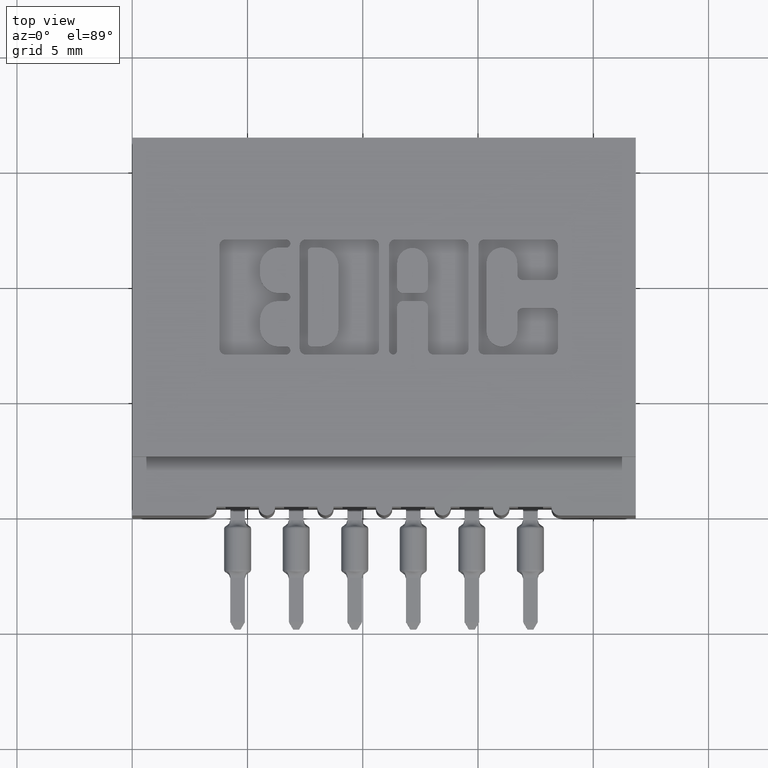
[diagram: clean part render]
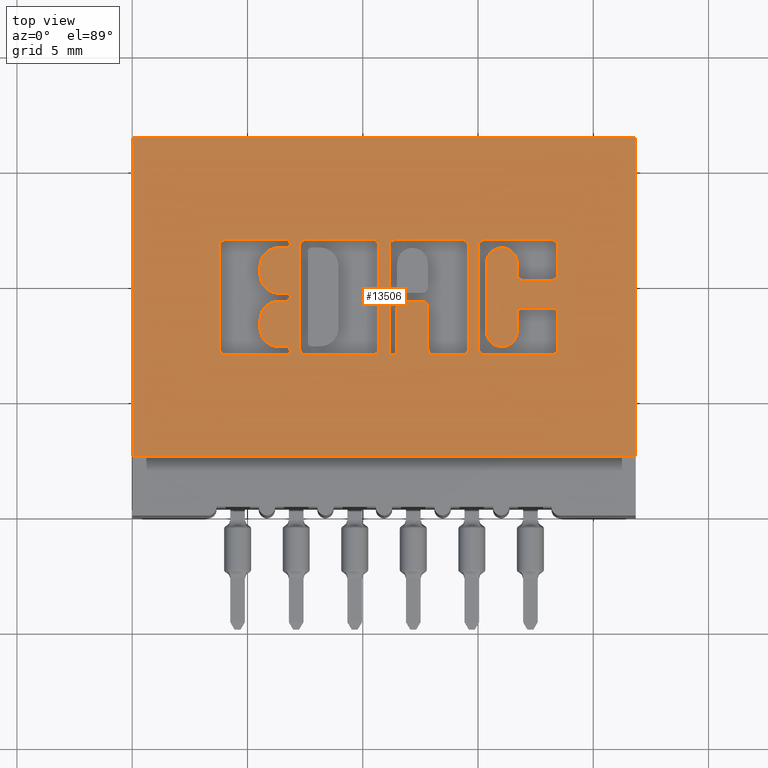
[diagram: same view with one face highlighted and labeled with its STEP entity id]
A machine part, top view. The second image highlights one B-rep face of the part: STEP entity #13506.
In plain terms, the highlighted planar face has unit normal (0, 0, -1).
Its self-contained STEP definition (entity closure, byte-faithful):
#60 = VERTEX_POINT ( 'NONE', #9882 ) ;
#142 = CIRCLE ( 'NONE', #4939, 0.009815670203803203778 ) ;
#155 = ORIENTED_EDGE ( 'NONE', *, *, #13499, .F. ) ;
#165 = LINE ( 'NONE', #8275, #302 ) ;
#166 = AXIS2_PLACEMENT_3D ( 'NONE', #3866, #2601, #9704 ) ;
#169 = CIRCLE ( 'NONE', #12877, 0.009815670203840902788 ) ;
#222 = CARTESIAN_POINT ( 'NONE',  ( 0.6010380533012652515, 0.2841589681657900046, 0.0000000000000000000 ) ) ;
#282 = EDGE_CURVE ( 'NONE', #13436, #3294, #14723, .T. ) ;
#302 = VECTOR ( 'NONE', #1297, 39.37007874015748143 ) ;
#349 = CARTESIAN_POINT ( 'NONE',  ( 0.1588421106199185973, 0.2743432979619850332, 0.0000000000000000000 ) ) ;
#350 = CARTESIAN_POINT ( 'NONE',  ( 0.4950288151001881465, 0.3656290308573498238, 0.0000000000000000000 ) ) ;
#387 = VERTEX_POINT ( 'NONE', #5876 ) ;
#388 = CARTESIAN_POINT ( 'NONE',  ( 0.0000000000000000000, 0.3793709691426839226, 0.0000000000000000000 ) ) ;
#403 = AXIS2_PLACEMENT_3D ( 'NONE', #6657, #5450, #13546 ) ;
#406 = CARTESIAN_POINT ( 'NONE',  ( 0.7266786319099720615, 0.4608410318341948919, 0.0000000000000000000 ) ) ;
#443 = CARTESIAN_POINT ( 'NONE',  ( 0.6010380533012652515, 0.2743432979619832568, 0.0000000000000000000 ) ) ;
#466 = EDGE_CURVE ( 'NONE', #11173, #3432, #2366, .T. ) ;
#478 = CARTESIAN_POINT ( 'NONE',  ( 0.4214112885716690959, 0.0000000000000000000, 0.0000000000000000000 ) ) ;
#482 = CARTESIAN_POINT ( 'NONE',  ( 0.4115956183678620706, 0.2841589681657900046, 0.0000000000000000000 ) ) ;
#537 = DIRECTION ( 'NONE',  ( 0.0000000000000000000, -1.000000000000000000, 0.0000000000000000000 ) ) ;
#540 = EDGE_CURVE ( 'NONE', #8610, #9257, #12096, .T. ) ;
#575 = LINE ( 'NONE', #6138, #3128 ) ;
#587 = CARTESIAN_POINT ( 'NONE',  ( 0.2496370600050840660, 0.3793709691426839226, 0.0000000000000000000 ) ) ;
#608 = VERTEX_POINT ( 'NONE', #5189 ) ;
#625 = EDGE_CURVE ( 'NONE', #12672, #2969, #10894, .T. ) ;
#661 = DIRECTION ( 'NONE',  ( -0.0000000000000000000, 0.0000000000000000000, 1.000000000000000000 ) ) ;
#701 = VERTEX_POINT ( 'NONE', #6704 ) ;
#794 = VERTEX_POINT ( 'NONE', #4892 ) ;
#870 = AXIS2_PLACEMENT_3D ( 'NONE', #2658, #4829, #3703 ) ;
#889 = CARTESIAN_POINT ( 'NONE',  ( 0.5048444853039847358, 0.0000000000000000000, 0.0000000000000000000 ) ) ;
#891 = LINE ( 'NONE', #3300, #9981 ) ;
#932 = EDGE_CURVE ( 'NONE', #2150, #4901, #3771, .T. ) ;
#975 = DIRECTION ( 'NONE',  ( -0.0000000000000000000, 0.0000000000000000000, 1.000000000000000000 ) ) ;
#1051 = EDGE_CURVE ( 'NONE', #2550, #13191, #4424, .T. ) ;
#1059 = ORIENTED_EDGE ( 'NONE', *, *, #3860, .T. ) ;
#1085 = CARTESIAN_POINT ( 'NONE',  ( 0.7168629617061531567, 0.3440345564089705155, 0.0000000000000000000 ) ) ;
#1184 = DIRECTION ( 'NONE',  ( 1.000000000000000000, 0.0000000000000000000, 0.0000000000000000000 ) ) ;
#1236 = EDGE_CURVE ( 'NONE', #9898, #6013, #8248, .T. ) ;
#1277 = CARTESIAN_POINT ( 'NONE',  ( 0.7168629617061342829, 0.2841589681657900046, 0.0000000000000000000 ) ) ;
#1297 = DIRECTION ( 'NONE',  ( 0.0000000000000000000, 1.000000000000000000, -0.0000000000000000000 ) ) ;
#1303 = ORIENTED_EDGE ( 'NONE', *, *, #5738, .F. ) ;
#1309 = CARTESIAN_POINT ( 'NONE',  ( 0.0000000000000000000, 0.6449999999999999067, 0.0000000000000000000 ) ) ;
#1321 = CARTESIAN_POINT ( 'NONE',  ( 0.2631336065353099829, 0.3725000000000204259, 0.0000000000000000000 ) ) ;
#1338 = EDGE_CURVE ( 'NONE', #14759, #13191, #8620, .T. ) ;
#1355 = AXIS2_PLACEMENT_3D ( 'NONE', #13510, #10210, #4294 ) ;
#1359 = LINE ( 'NONE', #2485, #3744 ) ;
#1428 = AXIS2_PLACEMENT_3D ( 'NONE', #3081, #11169, #1800 ) ;
#1477 = VERTEX_POINT ( 'NONE', #443 ) ;
#1491 = CARTESIAN_POINT ( 'NONE',  ( 0.2631336065353355180, 0.2812142671046480302, 0.0000000000000000000 ) ) ;
#1499 = FACE_BOUND ( 'NONE', #9098, .T. ) ;
#1517 = VECTOR ( 'NONE', #8537, 39.37007874015748143 ) ;
#1519 = ORIENTED_EDGE ( 'NONE', *, *, #932, .F. ) ;
#1579 = AXIS2_PLACEMENT_3D ( 'NONE', #9003, #12460, #11039 ) ;
#1585 = AXIS2_PLACEMENT_3D ( 'NONE', #14561, #9969, #13340 ) ;
#1587 = EDGE_CURVE ( 'NONE', #11006, #10068, #6834, .T. ) ;
#1621 = VECTOR ( 'NONE', #7650, 39.37007874015748143 ) ;
#1723 = DIRECTION ( 'NONE',  ( -0.0000000000000000000, 0.0000000000000000000, 1.000000000000000000 ) ) ;
#1734 = EDGE_CURVE ( 'NONE', #3294, #8596, #9928, .T. ) ;
#1758 = VECTOR ( 'NONE', #7782, 39.37007874015748143 ) ;
#1800 = DIRECTION ( 'NONE',  ( 1.000000000000000000, 0.0000000000000000000, 0.0000000000000000000 ) ) ;
#1863 = VERTEX_POINT ( 'NONE', #11352 ) ;
#1870 = ORIENTED_EDGE ( 'NONE', *, *, #10591, .T. ) ;
#1872 = CARTESIAN_POINT ( 'NONE',  ( 0.1588421106199222332, 0.2841589681657900046, 0.0000000000000000000 ) ) ;
#2014 = ORIENTED_EDGE ( 'NONE', *, *, #3272, .F. ) ;
#2036 = CARTESIAN_POINT ( 'NONE',  ( 0.0000000000000000000, 0.6449999999999999067, 0.0000000000000000000 ) ) ;
#2063 = VERTEX_POINT ( 'NONE', #10377 ) ;
#2120 = CARTESIAN_POINT ( 'NONE',  ( 0.2859550397591692494, 0.4608410318342101575, 0.0000000000000000000 ) ) ;
#2150 = VERTEX_POINT ( 'NONE', #6933 ) ;
#2165 = AXIS2_PLACEMENT_3D ( 'NONE', #2847, #7128, #10646 ) ;
#2202 = EDGE_CURVE ( 'NONE', #3538, #3875, #10884, .T. ) ;
#2282 = VECTOR ( 'NONE', #9307, 39.37007874015748143 ) ;
#2296 = LINE ( 'NONE', #6870, #10230 ) ;
#2312 = DIRECTION ( 'NONE',  ( -0.0000000000000000000, 0.0000000000000000000, 1.000000000000000000 ) ) ;
#2319 = CARTESIAN_POINT ( 'NONE',  ( 0.6574781569731789066, 0.3440345564089687391, 0.0000000000000000000 ) ) ;
#2327 = ORIENTED_EDGE ( 'NONE', *, *, #4403, .F. ) ;
#2333 = CARTESIAN_POINT ( 'NONE',  ( 0.8599999999999999867, 0.6449999999999999067, 0.0000000000000000000 ) ) ;
#2335 = DIRECTION ( 'NONE',  ( 1.000000000000000000, 0.0000000000000000000, 0.0000000000000000000 ) ) ;
#2339 = DIRECTION ( 'NONE',  ( 0.0000000000000000000, 1.000000000000000000, -0.0000000000000000000 ) ) ;
#2341 = EDGE_CURVE ( 'NONE', #8723, #9600, #13083, .T. ) ;
#2345 = AXIS2_PLACEMENT_3D ( 'NONE', #11937, #6295, #5101 ) ;
#2366 = LINE ( 'NONE', #14820, #11847 ) ;
#2374 = ORIENTED_EDGE ( 'NONE', *, *, #5746, .F. ) ;
#2394 = DIRECTION ( 'NONE',  ( 1.000000000000000000, 0.0000000000000000000, 0.0000000000000000000 ) ) ;
#2439 = AXIS2_PLACEMENT_3D ( 'NONE', #5241, #4122, #9824 ) ;
#2449 = CARTESIAN_POINT ( 'NONE',  ( 0.1490264404161154299, 0.0000000000000000000, 0.0000000000000000000 ) ) ;
#2455 = CARTESIAN_POINT ( 'NONE',  ( 0.7168629617061342829, 0.2743432979619832568, 0.0000000000000000000 ) ) ;
#2457 = DIRECTION ( 'NONE',  ( 1.000000000000000000, 0.0000000000000000000, 0.0000000000000000000 ) ) ;
#2485 = CARTESIAN_POINT ( 'NONE',  ( 0.2182269153529278194, 0.0000000000000000000, 0.0000000000000000000 ) ) ;
#2489 = EDGE_CURVE ( 'NONE', #8723, #701, #1359, .T. ) ;
#2550 = VERTEX_POINT ( 'NONE', #13192 ) ;
#2569 = ORIENTED_EDGE ( 'NONE', *, *, #7794, .T. ) ;
#2577 = ORIENTED_EDGE ( 'NONE', *, *, #2202, .F. ) ;
#2587 = AXIS2_PLACEMENT_3D ( 'NONE', #1491, #8524, #2754 ) ;
#2588 = EDGE_CURVE ( 'NONE', #14759, #6830, #5414, .T. ) ;
#2601 = DIRECTION ( 'NONE',  ( -0.0000000000000000000, 0.0000000000000000000, 1.000000000000000000 ) ) ;
#2620 = AXIS2_PLACEMENT_3D ( 'NONE', #13300, #4159, #14288 ) ;
#2658 = CARTESIAN_POINT ( 'NONE',  ( 0.4621463199174501990, 0.3558133606535456295, 0.0000000000000000000 ) ) ;
#2663 = CARTESIAN_POINT ( 'NONE',  ( 0.5912223830974585592, 0.4608410318342101575, 0.0000000000000000000 ) ) ;
#2754 = DIRECTION ( 'NONE',  ( 1.000000000000000000, 0.0000000000000000000, 0.0000000000000000000 ) ) ;
#2779 = EDGE_CURVE ( 'NONE', #9319, #608, #891, .T. ) ;
#2847 = CARTESIAN_POINT ( 'NONE',  ( 0.0000000000000000000, 0.6449999999999999067, 0.0000000000000000000 ) ) ;
#2870 = DIRECTION ( 'NONE',  ( 1.000000000000000000, 0.0000000000000000000, 0.0000000000000000000 ) ) ;
#2925 = DIRECTION ( 'NONE',  ( 1.000000000000000000, 0.0000000000000000000, 0.0000000000000000000 ) ) ;
#2927 = CARTESIAN_POINT ( 'NONE',  ( 0.1490264404161154299, 0.2841589681657900046, 0.0000000000000000000 ) ) ;
#2933 = CARTESIAN_POINT ( 'NONE',  ( 0.5642292900370139419, 0.4706567020380066912, 0.0000000000000000000 ) ) ;
#2934 = LINE ( 'NONE', #2036, #11723 ) ;
#2938 = LINE ( 'NONE', #2449, #14273 ) ;
#2969 = VERTEX_POINT ( 'NONE', #5081 ) ;
#2981 = VERTEX_POINT ( 'NONE', #11772 ) ;
#3037 = VERTEX_POINT ( 'NONE', #350 ) ;
#3081 = CARTESIAN_POINT ( 'NONE',  ( 0.4950288151001878134, 0.3558133606535528459, 0.0000000000000000000 ) ) ;
#3128 = VECTOR ( 'NONE', #11848, 39.37007874015748143 ) ;
#3176 = EDGE_CURVE ( 'NONE', #3632, #12816, #10713, .T. ) ;
#3184 = CARTESIAN_POINT ( 'NONE',  ( 0.5642292900370105002, 0.2841589681657809008, 0.0000000000000000000 ) ) ;
#3209 = ORIENTED_EDGE ( 'NONE', *, *, #14452, .F. ) ;
#3226 = LINE ( 'NONE', #13563, #1621 ) ;
#3228 = AXIS2_PLACEMENT_3D ( 'NONE', #10179, #4482, #9054 ) ;
#3255 = VERTEX_POINT ( 'NONE', #2455 ) ;
#3256 = DIRECTION ( 'NONE',  ( 1.000000000000000000, 0.0000000000000000000, 0.0000000000000000000 ) ) ;
#3263 = LINE ( 'NONE', #9933, #13091 ) ;
#3272 = EDGE_CURVE ( 'NONE', #3329, #14457, #11914, .T. ) ;
#3274 = ORIENTED_EDGE ( 'NONE', *, *, #11681, .F. ) ;
#3294 = VERTEX_POINT ( 'NONE', #13620 ) ;
#3300 = CARTESIAN_POINT ( 'NONE',  ( 0.0000000000000000000, 0.4706567020380327815, 0.0000000000000000000 ) ) ;
#3329 = VERTEX_POINT ( 'NONE', #5821 ) ;
#3350 = EDGE_CURVE ( 'NONE', #11237, #8181, #2296, .T. ) ;
#3354 = CARTESIAN_POINT ( 'NONE',  ( 0.2631336064153889098, 0.3656290308573568737, 0.0000000000000000000 ) ) ;
#3391 = CIRCLE ( 'NONE', #11777, 0.009815670203822599721 ) ;
#3414 = EDGE_CURVE ( 'NONE', #60, #10642, #5924, .T. ) ;
#3432 = VERTEX_POINT ( 'NONE', #7100 ) ;
#3445 = CARTESIAN_POINT ( 'NONE',  ( 0.6010380533012994464, 0.4608410318342101575, 0.0000000000000000000 ) ) ;
#3473 = CIRCLE ( 'NONE', #1585, 0.03141014465221589336 ) ;
#3481 = ORIENTED_EDGE ( 'NONE', *, *, #282, .F. ) ;
#3538 = VERTEX_POINT ( 'NONE', #7461 ) ;
#3575 = CARTESIAN_POINT ( 'NONE',  ( 0.6672938271769669472, 0.3440345564089696273, 0.0000000000000000000 ) ) ;
#3585 = AXIS2_PLACEMENT_3D ( 'NONE', #482, #13381, #9787 ) ;
#3632 = VERTEX_POINT ( 'NONE', #4235 ) ;
#3650 = DIRECTION ( 'NONE',  ( 1.000000000000000000, 0.0000000000000000000, 0.0000000000000000000 ) ) ;
#3655 = ORIENTED_EDGE ( 'NONE', *, *, #12670, .T. ) ;
#3660 = DIRECTION ( 'NONE',  ( 0.0000000000000000000, 1.000000000000000000, -0.0000000000000000000 ) ) ;
#3703 = DIRECTION ( 'NONE',  ( 1.000000000000000000, 0.0000000000000000000, 0.0000000000000000000 ) ) ;
#3711 = VERTEX_POINT ( 'NONE', #4813 ) ;
#3744 = VECTOR ( 'NONE', #2339, 39.37007874015748143 ) ;
#3748 = DIRECTION ( 'NONE',  ( 1.000000000000000000, 0.0000000000000000000, 0.0000000000000000000 ) ) ;
#3758 = CARTESIAN_POINT ( 'NONE',  ( 0.0000000000000000000, 0.4706567020380511002, 0.0000000000000000000 ) ) ;
#3766 = ORIENTED_EDGE ( 'NONE', *, *, #14364, .F. ) ;
#3771 = LINE ( 'NONE', #11869, #7777 ) ;
#3778 = AXIS2_PLACEMENT_3D ( 'NONE', #1085, #5893, #3650 ) ;
#3796 = EDGE_CURVE ( 'NONE', #10967, #10421, #12072, .T. ) ;
#3802 = ORIENTED_EDGE ( 'NONE', *, *, #2489, .F. ) ;
#3860 = EDGE_CURVE ( 'NONE', #11237, #14614, #5682, .T. ) ;
#3866 = CARTESIAN_POINT ( 'NONE',  ( 0.2631336065353513387, 0.4637857328953863267, 0.0000000000000000000 ) ) ;
#3867 = ORIENTED_EDGE ( 'NONE', *, *, #2341, .T. ) ;
#3875 = VERTEX_POINT ( 'NONE', #587 ) ;
#3892 = CARTESIAN_POINT ( 'NONE',  ( 0.2859550397591692494, 0.0000000000000000000, 0.0000000000000000000 ) ) ;
#3911 = VERTEX_POINT ( 'NONE', #14706 ) ;
#3922 = DIRECTION ( 'NONE',  ( 0.0000000000000000000, -1.000000000000000000, 0.0000000000000000000 ) ) ;
#3930 = CARTESIAN_POINT ( 'NONE',  ( 0.2700045756779998474, 0.4637857328953863267, 0.0000000000000000000 ) ) ;
#3969 = CARTESIAN_POINT ( 'NONE',  ( 0.2496370600051096011, 0.2880852362473086403, 0.0000000000000000000 ) ) ;
#3971 = DIRECTION ( 'NONE',  ( -0.0000000000000000000, 0.0000000000000000000, 1.000000000000000000 ) ) ;
#3980 = EDGE_CURVE ( 'NONE', #5131, #12091, #3226, .T. ) ;
#3993 = CARTESIAN_POINT ( 'NONE',  ( 0.7266786319099401981, 0.2841589681657830102, 0.0000000000000000000 ) ) ;
#4081 = CARTESIAN_POINT ( 'NONE',  ( 0.4523306497136469484, 0.0000000000000000000, 0.0000000000000000000 ) ) ;
#4100 = VECTOR ( 'NONE', #14329, 39.37007874015748143 ) ;
#4118 = LINE ( 'NONE', #14479, #6582 ) ;
#4122 = DIRECTION ( 'NONE',  ( -0.0000000000000000000, 0.0000000000000000000, 1.000000000000000000 ) ) ;
#4146 = EDGE_CURVE ( 'NONE', #794, #3632, #9047, .T. ) ;
#4159 = DIRECTION ( 'NONE',  ( -0.0000000000000000000, 0.0000000000000000000, 1.000000000000000000 ) ) ;
#4188 = ORIENTED_EDGE ( 'NONE', *, *, #2779, .F. ) ;
#4218 = VECTOR ( 'NONE', #14425, 39.37007874015748143 ) ;
#4235 = CARTESIAN_POINT ( 'NONE',  ( 0.2700045756779977935, 0.2812142671046480302, 0.0000000000000000000 ) ) ;
#4250 = VECTOR ( 'NONE', #8617, 39.37007874015748143 ) ;
#4294 = DIRECTION ( 'NONE',  ( 1.000000000000000000, 0.0000000000000000000, 0.0000000000000000000 ) ) ;
#4323 = VERTEX_POINT ( 'NONE', #13835 ) ;
#4339 = ORIENTED_EDGE ( 'NONE', *, *, #12931, .F. ) ;
#4376 = EDGE_LOOP ( 'NONE', ( #7692, #8589, #7286, #13206 ) ) ;
#4392 = ORIENTED_EDGE ( 'NONE', *, *, #7385, .F. ) ;
#4403 = EDGE_CURVE ( 'NONE', #10227, #10517, #9962, .T. ) ;
#4416 = CARTESIAN_POINT ( 'NONE',  ( 0.8599999999999999867, 0.6449999999999999067, 0.0000000000000000000 ) ) ;
#4424 = CIRCLE ( 'NONE', #8258, 0.009815670203795623036 ) ;
#4482 = DIRECTION ( 'NONE',  ( -0.0000000000000000000, 0.0000000000000000000, 1.000000000000000000 ) ) ;
#4485 = ORIENTED_EDGE ( 'NONE', *, *, #12221, .F. ) ;
#4486 = LINE ( 'NONE', #10341, #1758 ) ;
#4508 = DIRECTION ( 'NONE',  ( -0.0000000000000000000, 0.0000000000000000000, 1.000000000000000000 ) ) ;
#4538 = DIRECTION ( 'NONE',  ( 0.0000000000000000000, -1.000000000000000000, 0.0000000000000000000 ) ) ;
#4545 = DIRECTION ( 'NONE',  ( -0.0000000000000000000, 0.0000000000000000000, 1.000000000000000000 ) ) ;
#4576 = ORIENTED_EDGE ( 'NONE', *, *, #11325, .F. ) ;
#4752 = AXIS2_PLACEMENT_3D ( 'NONE', #3575, #4545, #11595 ) ;
#4783 = LINE ( 'NONE', #478, #10243 ) ;
#4798 = DIRECTION ( 'NONE',  ( -0.0000000000000000000, 0.0000000000000000000, 1.000000000000000000 ) ) ;
#4800 = CARTESIAN_POINT ( 'NONE',  ( 0.4621463199174501990, 0.3656290308573487136, 0.0000000000000000000 ) ) ;
#4813 = CARTESIAN_POINT ( 'NONE',  ( 0.2496370600051254773, 0.4569147637527357642, 0.0000000000000000000 ) ) ;
#4829 = DIRECTION ( 'NONE',  ( -0.0000000000000000000, 0.0000000000000000000, 1.000000000000000000 ) ) ;
#4872 = CARTESIAN_POINT ( 'NONE',  ( -0.0000000000000000000, 0.4706567020380066912, 0.0000000000000000000 ) ) ;
#4892 = CARTESIAN_POINT ( 'NONE',  ( 0.2631336064154143894, 0.2743432979619857548, 0.0000000000000000000 ) ) ;
#4901 = VERTEX_POINT ( 'NONE', #3354 ) ;
#4939 = AXIS2_PLACEMENT_3D ( 'NONE', #7344, #1723, #12906 ) ;
#4964 = ORIENTED_EDGE ( 'NONE', *, *, #12129, .F. ) ;
#4990 = EDGE_CURVE ( 'NONE', #2150, #701, #12624, .T. ) ;
#5009 = VECTOR ( 'NONE', #9215, 39.37007874015748143 ) ;
#5018 = ORIENTED_EDGE ( 'NONE', *, *, #8261, .F. ) ;
#5067 = EDGE_CURVE ( 'NONE', #11093, #11173, #12653, .T. ) ;
#5081 = CARTESIAN_POINT ( 'NONE',  ( 0.5912223830974585592, 0.2841589681657900046, 0.0000000000000000000 ) ) ;
#5101 = DIRECTION ( 'NONE',  ( 1.000000000000000000, 0.0000000000000000000, 0.0000000000000000000 ) ) ;
#5131 = VERTEX_POINT ( 'NONE', #1309 ) ;
#5160 = ORIENTED_EDGE ( 'NONE', *, *, #13272, .F. ) ;
#5178 = CARTESIAN_POINT ( 'NONE',  ( 0.4523306497136469484, 0.2812142671046480302, 0.0000000000000000000 ) ) ;
#5189 = CARTESIAN_POINT ( 'NONE',  ( 0.1588421106199380817, 0.4706567020380327815, 0.0000000000000000000 ) ) ;
#5227 = LINE ( 'NONE', #3892, #8073 ) ;
#5241 = CARTESIAN_POINT ( 'NONE',  ( 0.2631336065353099829, 0.3725000000000204259, 0.0000000000000000000 ) ) ;
#5257 = AXIS2_PLACEMENT_3D ( 'NONE', #13900, #7963, #11644 ) ;
#5273 = CARTESIAN_POINT ( 'NONE',  ( 0.6010380533012994464, 0.4706567020380511002, 0.0000000000000000000 ) ) ;
#5277 = DIRECTION ( 'NONE',  ( 1.000000000000000000, 0.0000000000000000000, 0.0000000000000000000 ) ) ;
#5302 = VERTEX_POINT ( 'NONE', #14281 ) ;
#5313 = LINE ( 'NONE', #9888, #11135 ) ;
#5324 = EDGE_CURVE ( 'NONE', #10517, #10967, #14214, .T. ) ;
#5343 = EDGE_CURVE ( 'NONE', #7234, #13416, #9644, .T. ) ;
#5386 = VERTEX_POINT ( 'NONE', #5273 ) ;
#5414 = CIRCLE ( 'NONE', #5897, 0.009815670203796511215 ) ;
#5450 = DIRECTION ( 'NONE',  ( -0.0000000000000000000, 0.0000000000000000000, 1.000000000000000000 ) ) ;
#5534 = CARTESIAN_POINT ( 'NONE',  ( -0.0000000000000000000, 0.4014562271012336869, 0.0000000000000000000 ) ) ;
#5585 = ORIENTED_EDGE ( 'NONE', *, *, #7708, .T. ) ;
#5619 = CARTESIAN_POINT ( 'NONE',  ( -0.0000000000000000000, 0.2743432979619832568, 0.0000000000000000000 ) ) ;
#5631 = VECTOR ( 'NONE', #10864, 39.37007874015748143 ) ;
#5632 = EDGE_CURVE ( 'NONE', #14457, #11093, #7487, .T. ) ;
#5682 = CIRCLE ( 'NONE', #2345, 0.02625691779517367111 ) ;
#5695 = CARTESIAN_POINT ( 'NONE',  ( 0.7168629617061320625, 0.4608410318342109901, 0.0000000000000000000 ) ) ;
#5738 = EDGE_CURVE ( 'NONE', #3711, #60, #4486, .T. ) ;
#5746 = EDGE_CURVE ( 'NONE', #5386, #12672, #9655, .T. ) ;
#5821 = CARTESIAN_POINT ( 'NONE',  ( 0.7266786319099401981, 0.3440345564089705155, 0.0000000000000000000 ) ) ;
#5836 = LINE ( 'NONE', #9134, #9545 ) ;
#5876 = CARTESIAN_POINT ( 'NONE',  ( 0.2182269153529095840, 0.4255046191005198430, 0.0000000000000000000 ) ) ;
#5889 = VECTOR ( 'NONE', #5277, 39.37007874015748143 ) ;
#5893 = DIRECTION ( 'NONE',  ( -0.0000000000000000000, 0.0000000000000000000, 1.000000000000000000 ) ) ;
#5896 = DIRECTION ( 'NONE',  ( -0.0000000000000000000, 0.0000000000000000000, 1.000000000000000000 ) ) ;
#5897 = AXIS2_PLACEMENT_3D ( 'NONE', #12909, #3971, #2925 ) ;
#5924 = CIRCLE ( 'NONE', #166, 0.006870969142648501726 ) ;
#5958 = CIRCLE ( 'NONE', #14353, 0.03141014465217447510 ) ;
#6013 = VERTEX_POINT ( 'NONE', #12201 ) ;
#6044 = ORIENTED_EDGE ( 'NONE', *, *, #5324, .F. ) ;
#6080 = ORIENTED_EDGE ( 'NONE', *, *, #13498, .F. ) ;
#6138 = CARTESIAN_POINT ( 'NONE',  ( 0.7266786319099401981, 0.0000000000000000000, 0.0000000000000000000 ) ) ;
#6162 = ORIENTED_EDGE ( 'NONE', *, *, #625, .F. ) ;
#6165 = ORIENTED_EDGE ( 'NONE', *, *, #540, .T. ) ;
#6175 = VERTEX_POINT ( 'NONE', #6575 ) ;
#6204 = CIRCLE ( 'NONE', #11962, 0.02625691779518022489 ) ;
#6212 = ORIENTED_EDGE ( 'NONE', *, *, #8526, .T. ) ;
#6256 = DIRECTION ( 'NONE',  ( -1.000000000000000000, -3.530861605407645268E-14, 0.0000000000000000000 ) ) ;
#6291 = ORIENTED_EDGE ( 'NONE', *, *, #7276, .F. ) ;
#6295 = DIRECTION ( 'NONE',  ( -0.0000000000000000000, 0.0000000000000000000, 1.000000000000000000 ) ) ;
#6352 = ORIENTED_EDGE ( 'NONE', *, *, #5632, .F. ) ;
#6353 = ORIENTED_EDGE ( 'NONE', *, *, #3414, .F. ) ;
#6414 = EDGE_CURVE ( 'NONE', #3037, #8442, #7384, .T. ) ;
#6445 = DIRECTION ( 'NONE',  ( -0.0000000000000000000, 0.0000000000000000000, 1.000000000000000000 ) ) ;
#6485 = CARTESIAN_POINT ( 'NONE',  ( -0.0000000000000000000, 0.2743432979619832568, 0.0000000000000000000 ) ) ;
#6519 = DIRECTION ( 'NONE',  ( 0.0000000000000000000, 1.000000000000000000, -0.0000000000000000000 ) ) ;
#6554 = DIRECTION ( 'NONE',  ( 1.000000000000000000, 0.0000000000000000000, 0.0000000000000000000 ) ) ;
#6575 = CARTESIAN_POINT ( 'NONE',  ( 0.5048444853039847358, 0.3558133606535435201, 0.0000000000000000000 ) ) ;
#6582 = VECTOR ( 'NONE', #6519, 39.37007874015748143 ) ;
#6593 = LINE ( 'NONE', #889, #11470 ) ;
#6607 = DIRECTION ( 'NONE',  ( 1.000000000000000000, 0.0000000000000000000, 0.0000000000000000000 ) ) ;
#6657 = CARTESIAN_POINT ( 'NONE',  ( 0.2631336065353355180, 0.2812142671046480302, 0.0000000000000000000 ) ) ;
#6662 = EDGE_CURVE ( 'NONE', #1863, #387, #165, .T. ) ;
#6678 = CARTESIAN_POINT ( 'NONE',  ( 0.6672938271769669472, 0.3538502266127576124, 0.0000000000000000000 ) ) ;
#6704 = CARTESIAN_POINT ( 'NONE',  ( 0.2182269153529278194, 0.3342188862052006271, 0.0000000000000000000 ) ) ;
#6738 = ORIENTED_EDGE ( 'NONE', *, *, #6414, .T. ) ;
#6830 = VERTEX_POINT ( 'NONE', #13212 ) ;
#6834 = CIRCLE ( 'NONE', #12092, 0.009815670203805868313 ) ;
#6870 = CARTESIAN_POINT ( 'NONE',  ( 0.6574781569731658060, 0.0000000000000000000, 0.0000000000000000000 ) ) ;
#6877 = VERTEX_POINT ( 'NONE', #3993 ) ;
#6914 = AXIS2_PLACEMENT_3D ( 'NONE', #10097, #7839, #7016 ) ;
#6933 = CARTESIAN_POINT ( 'NONE',  ( 0.2496370600050840660, 0.3656290308573568737, 0.0000000000000000000 ) ) ;
#6936 = AXIS2_PLACEMENT_3D ( 'NONE', #222, #4798, #14103 ) ;
#7016 = DIRECTION ( 'NONE',  ( 1.000000000000000000, 0.0000000000000000000, 0.0000000000000000000 ) ) ;
#7086 = CARTESIAN_POINT ( 'NONE',  ( 0.1490264404161154299, 0.4608410318342101575, 0.0000000000000000000 ) ) ;
#7100 = CARTESIAN_POINT ( 'NONE',  ( 0.6574781569731789066, 0.3143421540424530258, 0.0000000000000000000 ) ) ;
#7128 = DIRECTION ( 'NONE',  ( 0.0000000000000000000, 0.0000000000000000000, -1.000000000000000000 ) ) ;
#7166 = ORIENTED_EDGE ( 'NONE', *, *, #3176, .F. ) ;
#7214 = LINE ( 'NONE', #3758, #4100 ) ;
#7222 = ORIENTED_EDGE ( 'NONE', *, *, #5343, .F. ) ;
#7234 = VERTEX_POINT ( 'NONE', #9672 ) ;
#7266 = EDGE_CURVE ( 'NONE', #2063, #5386, #7214, .T. ) ;
#7276 = EDGE_CURVE ( 'NONE', #608, #12490, #3391, .T. ) ;
#7286 = ORIENTED_EDGE ( 'NONE', *, *, #1236, .F. ) ;
#7302 = VECTOR ( 'NONE', #3922, 39.37007874015748143 ) ;
#7306 = VERTEX_POINT ( 'NONE', #7648 ) ;
#7314 = ORIENTED_EDGE ( 'NONE', *, *, #14616, .F. ) ;
#7333 = CIRCLE ( 'NONE', #870, 0.009815670203803203778 ) ;
#7336 = CARTESIAN_POINT ( 'NONE',  ( 0.6574781569731658060, 0.4112718973050452642, 0.0000000000000000000 ) ) ;
#7344 = CARTESIAN_POINT ( 'NONE',  ( 0.5146601555077879864, 0.2841589681657878952, 0.0000000000000000000 ) ) ;
#7384 = LINE ( 'NONE', #14368, #11568 ) ;
#7385 = EDGE_CURVE ( 'NONE', #4901, #12234, #14183, .T. ) ;
#7461 = CARTESIAN_POINT ( 'NONE',  ( 0.2631336065353099829, 0.3793709691426839226, 0.0000000000000000000 ) ) ;
#7487 = LINE ( 'NONE', #12064, #1517 ) ;
#7494 = CARTESIAN_POINT ( 'NONE',  ( 0.4115956183678961544, 0.4706567020380511002, 0.0000000000000000000 ) ) ;
#7527 = DIRECTION ( 'NONE',  ( 1.000000000000000000, 0.0000000000000000000, 0.0000000000000000000 ) ) ;
#7570 = DIRECTION ( 'NONE',  ( 1.000000000000000000, 0.0000000000000000000, 0.0000000000000000000 ) ) ;
#7579 = LINE ( 'NONE', #9903, #10310 ) ;
#7640 = LINE ( 'NONE', #13335, #4250 ) ;
#7644 = DIRECTION ( 'NONE',  ( 1.000000000000000000, 7.203446383881649836E-15, 0.0000000000000000000 ) ) ;
#7648 = CARTESIAN_POINT ( 'NONE',  ( 0.5048444853039847358, 0.2841589681657878952, 0.0000000000000000000 ) ) ;
#7650 = DIRECTION ( 'NONE',  ( -0.0000000000000000000, -1.000000000000000000, -0.0000000000000000000 ) ) ;
#7692 = ORIENTED_EDGE ( 'NONE', *, *, #3980, .T. ) ;
#7708 = EDGE_CURVE ( 'NONE', #7234, #8329, #3263, .T. ) ;
#7715 = DIRECTION ( 'NONE',  ( 1.000000000000000000, 0.0000000000000000000, 0.0000000000000000000 ) ) ;
#7722 = CARTESIAN_POINT ( 'NONE',  ( 0.1588421106199380817, 0.4608410318342101575, 0.0000000000000000000 ) ) ;
#7777 = VECTOR ( 'NONE', #2870, 39.37007874015748143 ) ;
#7782 = DIRECTION ( 'NONE',  ( 1.000000000000000000, 0.0000000000000000000, 0.0000000000000000000 ) ) ;
#7794 = EDGE_CURVE ( 'NONE', #8442, #8610, #7333, .T. ) ;
#7798 = CARTESIAN_POINT ( 'NONE',  ( 0.5146601555077857659, 0.2743432979619847001, 0.0000000000000000000 ) ) ;
#7820 = CARTESIAN_POINT ( 'NONE',  ( 0.7168629617061670345, 0.4112718973050387139, 0.0000000000000000000 ) ) ;
#7839 = DIRECTION ( 'NONE',  ( -0.0000000000000000000, 0.0000000000000000000, 1.000000000000000000 ) ) ;
#7869 = CIRCLE ( 'NONE', #2620, 0.009815670203811672698 ) ;
#7963 = DIRECTION ( 'NONE',  ( -0.0000000000000000000, 0.0000000000000000000, 1.000000000000000000 ) ) ;
#8035 = ORIENTED_EDGE ( 'NONE', *, *, #8745, .F. ) ;
#8044 = VERTEX_POINT ( 'NONE', #2120 ) ;
#8073 = VECTOR ( 'NONE', #9812, 39.37007874015748143 ) ;
#8079 = DIRECTION ( 'NONE',  ( -0.0000000000000000000, 0.0000000000000000000, 1.000000000000000000 ) ) ;
#8083 = VECTOR ( 'NONE', #12986, 39.37007874015748143 ) ;
#8086 = DIRECTION ( 'NONE',  ( -1.000000000000000000, -1.189163988687022540E-13, 0.0000000000000000000 ) ) ;
#8141 = ORIENTED_EDGE ( 'NONE', *, *, #7266, .F. ) ;
#8152 = AXIS2_PLACEMENT_3D ( 'NONE', #13950, #13111, #3748 ) ;
#8181 = VERTEX_POINT ( 'NONE', #7336 ) ;
#8213 = ORIENTED_EDGE ( 'NONE', *, *, #14237, .F. ) ;
#8220 = CARTESIAN_POINT ( 'NONE',  ( 0.4214112885716690959, 0.4608410318342101575, 0.0000000000000000000 ) ) ;
#8248 = LINE ( 'NONE', #2333, #2282 ) ;
#8258 = AXIS2_PLACEMENT_3D ( 'NONE', #12458, #975, #12381 ) ;
#8261 = EDGE_CURVE ( 'NONE', #8044, #13436, #5227, .T. ) ;
#8275 = CARTESIAN_POINT ( 'NONE',  ( 0.2182269153529095840, 0.0000000000000000000, 0.0000000000000000000 ) ) ;
#8290 = AXIS2_PLACEMENT_3D ( 'NONE', #1277, #4508, #2335 ) ;
#8322 = FACE_OUTER_BOUND ( 'NONE', #4376, .T. ) ;
#8329 = VERTEX_POINT ( 'NONE', #7798 ) ;
#8346 = VECTOR ( 'NONE', #14762, 39.37007874015748143 ) ;
#8347 = CARTESIAN_POINT ( 'NONE',  ( 0.2631336065353513387, 0.4706567020380327815, 0.0000000000000000000 ) ) ;
#8360 = DIRECTION ( 'NONE',  ( 1.000000000000000000, 0.0000000000000000000, 0.0000000000000000000 ) ) ;
#8442 = VERTEX_POINT ( 'NONE', #4800 ) ;
#8524 = DIRECTION ( 'NONE',  ( -0.0000000000000000000, 0.0000000000000000000, 1.000000000000000000 ) ) ;
#8526 = EDGE_CURVE ( 'NONE', #2550, #13416, #7640, .T. ) ;
#8537 = DIRECTION ( 'NONE',  ( -1.000000000000000000, 0.0000000000000000000, 0.0000000000000000000 ) ) ;
#8547 = CARTESIAN_POINT ( 'NONE',  ( 0.7266786319099720615, 0.0000000000000000000, 0.0000000000000000000 ) ) ;
#8586 = DIRECTION ( 'NONE',  ( -0.0000000000000000000, 0.0000000000000000000, 1.000000000000000000 ) ) ;
#8589 = ORIENTED_EDGE ( 'NONE', *, *, #10689, .F. ) ;
#8592 = CIRCLE ( 'NONE', #10515, 0.009815670203839946956 ) ;
#8596 = VERTEX_POINT ( 'NONE', #13112 ) ;
#8610 = VERTEX_POINT ( 'NONE', #8846 ) ;
#8617 = DIRECTION ( 'NONE',  ( 0.0000000000000000000, -1.000000000000000000, 0.0000000000000000000 ) ) ;
#8620 = LINE ( 'NONE', #4872, #5631 ) ;
#8700 = AXIS2_PLACEMENT_3D ( 'NONE', #7820, #8724, #6554 ) ;
#8723 = VERTEX_POINT ( 'NONE', #12506 ) ;
#8724 = DIRECTION ( 'NONE',  ( -0.0000000000000000000, 0.0000000000000000000, 1.000000000000000000 ) ) ;
#8745 = EDGE_CURVE ( 'NONE', #5302, #8044, #169, .T. ) ;
#8846 = CARTESIAN_POINT ( 'NONE',  ( 0.4523306497136469484, 0.3558133606535456295, 0.0000000000000000000 ) ) ;
#8915 = EDGE_CURVE ( 'NONE', #3911, #10460, #4783, .T. ) ;
#8917 = DIRECTION ( 'NONE',  ( 0.0000000000000000000, 1.000000000000000000, -0.0000000000000000000 ) ) ;
#8941 = AXIS2_PLACEMENT_3D ( 'NONE', #3445, #2312, #1184 ) ;
#9003 = CARTESIAN_POINT ( 'NONE',  ( 0.4454596805709871155, 0.2812142671046480302, 0.0000000000000000000 ) ) ;
#9047 = CIRCLE ( 'NONE', #2587, 0.006870969142662263288 ) ;
#9049 = ORIENTED_EDGE ( 'NONE', *, *, #1587, .F. ) ;
#9054 = DIRECTION ( 'NONE',  ( 1.000000000000000000, 0.0000000000000000000, 0.0000000000000000000 ) ) ;
#9084 = VECTOR ( 'NONE', #10433, 39.37007874015748143 ) ;
#9098 = EDGE_LOOP ( 'NONE', ( #155, #13896, #14326, #13138, #3481, #5018, #8035, #5160 ) ) ;
#9134 = CARTESIAN_POINT ( 'NONE',  ( -3.425805886176575133E-14, 0.2880852362472789974, 0.0000000000000000000 ) ) ;
#9215 = DIRECTION ( 'NONE',  ( 1.000000000000000000, 0.0000000000000000000, 0.0000000000000000000 ) ) ;
#9227 = CARTESIAN_POINT ( 'NONE',  ( 0.8599999999999999867, 0.1000000000000000056, 0.0000000000000000000 ) ) ;
#9257 = VERTEX_POINT ( 'NONE', #5178 ) ;
#9307 = DIRECTION ( 'NONE',  ( -0.0000000000000000000, -1.000000000000000000, -0.0000000000000000000 ) ) ;
#9319 = VERTEX_POINT ( 'NONE', #8347 ) ;
#9336 = ORIENTED_EDGE ( 'NONE', *, *, #4146, .F. ) ;
#9373 = FACE_BOUND ( 'NONE', #13034, .T. ) ;
#9455 = ORIENTED_EDGE ( 'NONE', *, *, #4990, .T. ) ;
#9458 = ORIENTED_EDGE ( 'NONE', *, *, #12332, .F. ) ;
#9492 = ORIENTED_EDGE ( 'NONE', *, *, #14757, .T. ) ;
#9509 = CARTESIAN_POINT ( 'NONE',  ( 0.6049643213828185262, 0.0000000000000000000, 0.0000000000000000000 ) ) ;
#9517 = FACE_BOUND ( 'NONE', #10160, .T. ) ;
#9537 = ORIENTED_EDGE ( 'NONE', *, *, #9829, .T. ) ;
#9545 = VECTOR ( 'NONE', #8086, 39.37007874015748143 ) ;
#9600 = VERTEX_POINT ( 'NONE', #3969 ) ;
#9644 = CIRCLE ( 'NONE', #11098, 0.009815670203796237128 ) ;
#9655 = CIRCLE ( 'NONE', #8941, 0.009815670203840902788 ) ;
#9672 = CARTESIAN_POINT ( 'NONE',  ( 0.5642292900370105002, 0.2743432979619847001, 0.0000000000000000000 ) ) ;
#9704 = DIRECTION ( 'NONE',  ( 1.000000000000000000, 0.0000000000000000000, 0.0000000000000000000 ) ) ;
#9787 = DIRECTION ( 'NONE',  ( 1.000000000000000000, 0.0000000000000000000, 0.0000000000000000000 ) ) ;
#9812 = DIRECTION ( 'NONE',  ( 0.0000000000000000000, -1.000000000000000000, 0.0000000000000000000 ) ) ;
#9824 = DIRECTION ( 'NONE',  ( 1.000000000000000000, 0.0000000000000000000, 0.0000000000000000000 ) ) ;
#9829 = EDGE_CURVE ( 'NONE', #7306, #6175, #6593, .T. ) ;
#9882 = CARTESIAN_POINT ( 'NONE',  ( 0.2631336065353514497, 0.4569147637527357642, 0.0000000000000000000 ) ) ;
#9888 = CARTESIAN_POINT ( 'NONE',  ( -1.976217237646418597E-15, 0.2743432979619838674, 0.0000000000000000000 ) ) ;
#9898 = VERTEX_POINT ( 'NONE', #4416 ) ;
#9903 = CARTESIAN_POINT ( 'NONE',  ( 0.0000000000000000000, 0.4706567020380511002, 0.0000000000000000000 ) ) ;
#9904 = CARTESIAN_POINT ( 'NONE',  ( 0.0000000000000000000, 0.1000000000000000056, 0.0000000000000000000 ) ) ;
#9928 = LINE ( 'NONE', #6485, #5889 ) ;
#9933 = CARTESIAN_POINT ( 'NONE',  ( 0.0000000000000000000, 0.2743432979619847001, 0.0000000000000000000 ) ) ;
#9939 = EDGE_CURVE ( 'NONE', #12816, #9600, #5836, .T. ) ;
#9962 = LINE ( 'NONE', #5534, #8346 ) ;
#9969 = DIRECTION ( 'NONE',  ( -0.0000000000000000000, 0.0000000000000000000, 1.000000000000000000 ) ) ;
#9981 = VECTOR ( 'NONE', #11322, 39.37007874015748143 ) ;
#9999 = CARTESIAN_POINT ( 'NONE',  ( 0.2631336064154143894, 0.2880852362473102501, 0.0000000000000000000 ) ) ;
#10046 = CARTESIAN_POINT ( 'NONE',  ( 0.2957707099630101921, 0.4608410318342101575, 0.0000000000000000000 ) ) ;
#10068 = VERTEX_POINT ( 'NONE', #349 ) ;
#10097 = CARTESIAN_POINT ( 'NONE',  ( 0.2496370600050840660, 0.3342188862052006271, 0.0000000000000000000 ) ) ;
#10128 = DIRECTION ( 'NONE',  ( -1.000000000000000000, 0.0000000000000000000, 0.0000000000000000000 ) ) ;
#10157 = ORIENTED_EDGE ( 'NONE', *, *, #14801, .T. ) ;
#10160 = EDGE_LOOP ( 'NONE', ( #9492, #13516, #1870, #2577, #3274, #4392, #1519, #9455, #3802, #3867, #12304, #7166, #9336, #12709, #9049, #8213, #6291, #4188, #4339, #6353, #1303 ) ) ;
#10179 = CARTESIAN_POINT ( 'NONE',  ( 0.2957707099629760528, 0.2841589681657900046, 0.0000000000000000000 ) ) ;
#10210 = DIRECTION ( 'NONE',  ( -0.0000000000000000000, 0.0000000000000000000, 1.000000000000000000 ) ) ;
#10227 = VERTEX_POINT ( 'NONE', #13172 ) ;
#10230 = VECTOR ( 'NONE', #13693, 39.37007874015748143 ) ;
#10243 = VECTOR ( 'NONE', #3660, 39.37007874015748143 ) ;
#10277 = DIRECTION ( 'NONE',  ( -0.0000000000000000000, 0.0000000000000000000, 1.000000000000000000 ) ) ;
#10310 = VECTOR ( 'NONE', #10128, 39.37007874015748143 ) ;
#10341 = CARTESIAN_POINT ( 'NONE',  ( -0.0000000000000000000, 0.4569147637527357642, 0.0000000000000000000 ) ) ;
#10364 = ORIENTED_EDGE ( 'NONE', *, *, #3350, .F. ) ;
#10376 = ORIENTED_EDGE ( 'NONE', *, *, #5067, .F. ) ;
#10377 = CARTESIAN_POINT ( 'NONE',  ( 0.7168629617061684778, 0.4706567020380511002, 0.0000000000000000000 ) ) ;
#10421 = VERTEX_POINT ( 'NONE', #406 ) ;
#10433 = DIRECTION ( 'NONE',  ( -1.000000000000000000, -0.0000000000000000000, -0.0000000000000000000 ) ) ;
#10460 = VERTEX_POINT ( 'NONE', #8220 ) ;
#10468 = CARTESIAN_POINT ( 'NONE',  ( 0.7168629617061670345, 0.4014562271012336869, 0.0000000000000000000 ) ) ;
#10515 = AXIS2_PLACEMENT_3D ( 'NONE', #5695, #10277, #14862 ) ;
#10516 = CIRCLE ( 'NONE', #3585, 0.009815670203806891800 ) ;
#10517 = VERTEX_POINT ( 'NONE', #10468 ) ;
#10564 = EDGE_CURVE ( 'NONE', #8596, #3911, #10516, .T. ) ;
#10591 = EDGE_CURVE ( 'NONE', #1863, #3875, #5958, .T. ) ;
#10604 = EDGE_CURVE ( 'NONE', #8181, #10227, #7869, .T. ) ;
#10639 = LINE ( 'NONE', #9509, #13127 ) ;
#10642 = VERTEX_POINT ( 'NONE', #3930 ) ;
#10646 = DIRECTION ( 'NONE',  ( -1.000000000000000000, 0.0000000000000000000, -0.0000000000000000000 ) ) ;
#10689 = EDGE_CURVE ( 'NONE', #6013, #12091, #12334, .T. ) ;
#10713 = CIRCLE ( 'NONE', #403, 0.006870969142662263288 ) ;
#10864 = DIRECTION ( 'NONE',  ( 1.000000000000000000, 0.0000000000000000000, 0.0000000000000000000 ) ) ;
#10884 = LINE ( 'NONE', #388, #4218 ) ;
#10894 = LINE ( 'NONE', #13004, #7302 ) ;
#10967 = VERTEX_POINT ( 'NONE', #13425 ) ;
#11006 = VERTEX_POINT ( 'NONE', #2927 ) ;
#11020 = EDGE_CURVE ( 'NONE', #6175, #3037, #11733, .T. ) ;
#11022 = CIRCLE ( 'NONE', #8152, 0.009815670203841107486 ) ;
#11039 = DIRECTION ( 'NONE',  ( 1.000000000000000000, 0.0000000000000000000, 0.0000000000000000000 ) ) ;
#11065 = VERTEX_POINT ( 'NONE', #7494 ) ;
#11093 = VERTEX_POINT ( 'NONE', #6678 ) ;
#11098 = AXIS2_PLACEMENT_3D ( 'NONE', #3184, #14666, #3256 ) ;
#11135 = VECTOR ( 'NONE', #7644, 39.37007874015748143 ) ;
#11169 = DIRECTION ( 'NONE',  ( -0.0000000000000000000, 0.0000000000000000000, 1.000000000000000000 ) ) ;
#11173 = VERTEX_POINT ( 'NONE', #2319 ) ;
#11184 = EDGE_LOOP ( 'NONE', ( #6044, #2327, #12821, #10364, #1059, #4576, #3655, #13783, #10376, #6352, #2014, #6080, #3209, #4964, #9458, #6162, #2374, #8141, #4485, #12111 ) ) ;
#11237 = VERTEX_POINT ( 'NONE', #11912 ) ;
#11322 = DIRECTION ( 'NONE',  ( -1.000000000000000000, 0.0000000000000000000, 0.0000000000000000000 ) ) ;
#11325 = EDGE_CURVE ( 'NONE', #2981, #14614, #10639, .T. ) ;
#11329 = LINE ( 'NONE', #5619, #5009 ) ;
#11352 = CARTESIAN_POINT ( 'NONE',  ( 0.2182269153529095840, 0.4107811137948584324, 0.0000000000000000000 ) ) ;
#11470 = VECTOR ( 'NONE', #8917, 39.37007874015748143 ) ;
#11568 = VECTOR ( 'NONE', #6256, 39.37007874015748143 ) ;
#11595 = DIRECTION ( 'NONE',  ( 1.000000000000000000, 0.0000000000000000000, 0.0000000000000000000 ) ) ;
#11644 = DIRECTION ( 'NONE',  ( 1.000000000000000000, 0.0000000000000000000, 0.0000000000000000000 ) ) ;
#11681 = EDGE_CURVE ( 'NONE', #12234, #3538, #13623, .T. ) ;
#11723 = VECTOR ( 'NONE', #6607, 39.37007874015748143 ) ;
#11733 = CIRCLE ( 'NONE', #1428, 0.009815670203796988263 ) ;
#11772 = CARTESIAN_POINT ( 'NONE',  ( 0.6049643213828185262, 0.3143421540424530258, 0.0000000000000000000 ) ) ;
#11777 = AXIS2_PLACEMENT_3D ( 'NONE', #7722, #661, #7570 ) ;
#11847 = VECTOR ( 'NONE', #4538, 39.37007874015748143 ) ;
#11848 = DIRECTION ( 'NONE',  ( 0.0000000000000000000, 1.000000000000000000, -0.0000000000000000000 ) ) ;
#11852 = CARTESIAN_POINT ( 'NONE',  ( 0.6049643213828185262, 0.4306578459575296502, 0.0000000000000000000 ) ) ;
#11869 = CARTESIAN_POINT ( 'NONE',  ( -0.0000000000000000000, 0.3656290308573568737, 0.0000000000000000000 ) ) ;
#11884 = CARTESIAN_POINT ( 'NONE',  ( 0.6312212391779987719, 0.3143421540424530258, 0.0000000000000000000 ) ) ;
#11912 = CARTESIAN_POINT ( 'NONE',  ( 0.6574781569731658060, 0.4306578454992600058, 0.0000000000000000000 ) ) ;
#11914 = CIRCLE ( 'NONE', #3778, 0.009815670203787086462 ) ;
#11937 = CARTESIAN_POINT ( 'NONE',  ( 0.6312212391779922216, 0.4306578459575296502, 0.0000000000000000000 ) ) ;
#11962 = AXIS2_PLACEMENT_3D ( 'NONE', #11884, #13150, #8360 ) ;
#12042 = EDGE_CURVE ( 'NONE', #5131, #9898, #2934, .T. ) ;
#12064 = CARTESIAN_POINT ( 'NONE',  ( 0.0000000000000000000, 0.3538502266127576124, 0.0000000000000000000 ) ) ;
#12072 = LINE ( 'NONE', #8547, #8083 ) ;
#12091 = VERTEX_POINT ( 'NONE', #9904 ) ;
#12092 = AXIS2_PLACEMENT_3D ( 'NONE', #1872, #6445, #7715 ) ;
#12096 = LINE ( 'NONE', #4081, #13515 ) ;
#12103 = CARTESIAN_POINT ( 'NONE',  ( 0.2496370600050840660, 0.4107811137948584324, 0.0000000000000000000 ) ) ;
#12111 = ORIENTED_EDGE ( 'NONE', *, *, #3796, .F. ) ;
#12129 = EDGE_CURVE ( 'NONE', #1477, #3255, #11329, .T. ) ;
#12195 = ORIENTED_EDGE ( 'NONE', *, *, #1051, .F. ) ;
#12201 = CARTESIAN_POINT ( 'NONE',  ( 0.8599999999999999867, 0.1000000000000000056, 0.0000000000000000000 ) ) ;
#12221 = EDGE_CURVE ( 'NONE', #10421, #2063, #8592, .T. ) ;
#12234 = VERTEX_POINT ( 'NONE', #12818 ) ;
#12304 = ORIENTED_EDGE ( 'NONE', *, *, #9939, .F. ) ;
#12332 = EDGE_CURVE ( 'NONE', #2969, #1477, #14608, .T. ) ;
#12334 = LINE ( 'NONE', #9227, #9084 ) ;
#12360 = ORIENTED_EDGE ( 'NONE', *, *, #2588, .F. ) ;
#12363 = CARTESIAN_POINT ( 'NONE',  ( 0.4484043816321274800, 0.4706567020380066912, 0.0000000000000000000 ) ) ;
#12381 = DIRECTION ( 'NONE',  ( 1.000000000000000000, 0.0000000000000000000, 0.0000000000000000000 ) ) ;
#12458 = CARTESIAN_POINT ( 'NONE',  ( 0.5642292900370116104, 0.4608410318342104350, 0.0000000000000000000 ) ) ;
#12460 = DIRECTION ( 'NONE',  ( -0.0000000000000000000, 0.0000000000000000000, 1.000000000000000000 ) ) ;
#12490 = VERTEX_POINT ( 'NONE', #7086 ) ;
#12506 = CARTESIAN_POINT ( 'NONE',  ( 0.2182269153529278194, 0.3194953808994904221, 0.0000000000000000000 ) ) ;
#12520 = CARTESIAN_POINT ( 'NONE',  ( 0.5740449602408067564, 0.2841589681657809008, 0.0000000000000000000 ) ) ;
#12624 = CIRCLE ( 'NONE', #6914, 0.03141014465215623969 ) ;
#12653 = CIRCLE ( 'NONE', #4752, 0.009815670203788042295 ) ;
#12670 = EDGE_CURVE ( 'NONE', #2981, #3432, #6204, .T. ) ;
#12672 = VERTEX_POINT ( 'NONE', #2663 ) ;
#12709 = ORIENTED_EDGE ( 'NONE', *, *, #14783, .F. ) ;
#12749 = CARTESIAN_POINT ( 'NONE',  ( 0.7168629617061567094, 0.3538502266127576124, 0.0000000000000000000 ) ) ;
#12816 = VERTEX_POINT ( 'NONE', #9999 ) ;
#12818 = CARTESIAN_POINT ( 'NONE',  ( 0.2700045756779735351, 0.3725000000000204259, 0.0000000000000000000 ) ) ;
#12819 = PLANE ( 'NONE',  #2165 ) ;
#12821 = ORIENTED_EDGE ( 'NONE', *, *, #10604, .F. ) ;
#12877 = AXIS2_PLACEMENT_3D ( 'NONE', #10046, #8079, #2394 ) ;
#12906 = DIRECTION ( 'NONE',  ( 1.000000000000000000, 0.0000000000000000000, 0.0000000000000000000 ) ) ;
#12909 = CARTESIAN_POINT ( 'NONE',  ( 0.4484043816321274800, 0.4608410318342101575, 0.0000000000000000000 ) ) ;
#12931 = EDGE_CURVE ( 'NONE', #10642, #9319, #14857, .T. ) ;
#12941 = DIRECTION ( 'NONE',  ( 0.0000000000000000000, -1.000000000000000000, 0.0000000000000000000 ) ) ;
#12986 = DIRECTION ( 'NONE',  ( 0.0000000000000000000, 1.000000000000000000, -0.0000000000000000000 ) ) ;
#13004 = CARTESIAN_POINT ( 'NONE',  ( 0.5912223830974585592, 0.0000000000000000000, 0.0000000000000000000 ) ) ;
#13034 = EDGE_LOOP ( 'NONE', ( #14475, #12195, #6212, #7222, #5585, #7314, #9537, #13329, #6738, #2569, #6165, #3766, #10157, #12360 ) ) ;
#13071 = CIRCLE ( 'NONE', #1579, 0.006870969142657995000 ) ;
#13083 = CIRCLE ( 'NONE', #1355, 0.03141014465218178175 ) ;
#13091 = VECTOR ( 'NONE', #13529, 39.37007874015748143 ) ;
#13103 = DIRECTION ( 'NONE',  ( 0.0000000000000000000, 1.000000000000000000, -0.0000000000000000000 ) ) ;
#13111 = DIRECTION ( 'NONE',  ( -0.0000000000000000000, 0.0000000000000000000, 1.000000000000000000 ) ) ;
#13112 = CARTESIAN_POINT ( 'NONE',  ( 0.4115956183678620706, 0.2743432979619832568, 0.0000000000000000000 ) ) ;
#13127 = VECTOR ( 'NONE', #13103, 39.37007874015748143 ) ;
#13138 = ORIENTED_EDGE ( 'NONE', *, *, #1734, .F. ) ;
#13150 = DIRECTION ( 'NONE',  ( -0.0000000000000000000, 0.0000000000000000000, 1.000000000000000000 ) ) ;
#13172 = CARTESIAN_POINT ( 'NONE',  ( 0.6672938271769774943, 0.4014562271012336869, 0.0000000000000000000 ) ) ;
#13191 = VERTEX_POINT ( 'NONE', #2933 ) ;
#13192 = CARTESIAN_POINT ( 'NONE',  ( 0.5740449602408067564, 0.4608410318342010537, 0.0000000000000000000 ) ) ;
#13206 = ORIENTED_EDGE ( 'NONE', *, *, #12042, .F. ) ;
#13212 = CARTESIAN_POINT ( 'NONE',  ( 0.4385887114283309463, 0.4608410318342101575, 0.0000000000000000000 ) ) ;
#13272 = EDGE_CURVE ( 'NONE', #11065, #5302, #7579, .T. ) ;
#13300 = CARTESIAN_POINT ( 'NONE',  ( 0.6672938271769774943, 0.4112718973050452642, 0.0000000000000000000 ) ) ;
#13329 = ORIENTED_EDGE ( 'NONE', *, *, #11020, .T. ) ;
#13335 = CARTESIAN_POINT ( 'NONE',  ( 0.5740449602408067564, 0.0000000000000000000, 0.0000000000000000000 ) ) ;
#13340 = DIRECTION ( 'NONE',  ( 1.000000000000000000, 0.0000000000000000000, 0.0000000000000000000 ) ) ;
#13381 = DIRECTION ( 'NONE',  ( -0.0000000000000000000, 0.0000000000000000000, 1.000000000000000000 ) ) ;
#13416 = VERTEX_POINT ( 'NONE', #12520 ) ;
#13425 = CARTESIAN_POINT ( 'NONE',  ( 0.7266786319099720615, 0.4112718973050387139, 0.0000000000000000000 ) ) ;
#13436 = VERTEX_POINT ( 'NONE', #14106 ) ;
#13498 = EDGE_CURVE ( 'NONE', #6877, #3329, #575, .T. ) ;
#13499 = EDGE_CURVE ( 'NONE', #10460, #11065, #11022, .T. ) ;
#13506 = ADVANCED_FACE ( 'NONE', ( #14178, #9517, #8322, #1499, #9373 ), #12819, .F. ) ;
#13510 = CARTESIAN_POINT ( 'NONE',  ( 0.2496370600051096011, 0.3194953808994904221, 0.0000000000000000000 ) ) ;
#13515 = VECTOR ( 'NONE', #537, 39.37007874015748143 ) ;
#13516 = ORIENTED_EDGE ( 'NONE', *, *, #6662, .F. ) ;
#13529 = DIRECTION ( 'NONE',  ( -1.000000000000000000, 0.0000000000000000000, 0.0000000000000000000 ) ) ;
#13546 = DIRECTION ( 'NONE',  ( 1.000000000000000000, 0.0000000000000000000, 0.0000000000000000000 ) ) ;
#13563 = CARTESIAN_POINT ( 'NONE',  ( 0.0000000000000000000, 0.6449999999999999067, 0.0000000000000000000 ) ) ;
#13620 = CARTESIAN_POINT ( 'NONE',  ( 0.2957707099629760528, 0.2743432979619832568, 0.0000000000000000000 ) ) ;
#13623 = CIRCLE ( 'NONE', #14594, 0.006870969142663527034 ) ;
#13693 = DIRECTION ( 'NONE',  ( 0.0000000000000000000, -1.000000000000000000, 0.0000000000000000000 ) ) ;
#13783 = ORIENTED_EDGE ( 'NONE', *, *, #466, .F. ) ;
#13835 = CARTESIAN_POINT ( 'NONE',  ( 0.4385887114283309463, 0.2812142671046480302, 0.0000000000000000000 ) ) ;
#13896 = ORIENTED_EDGE ( 'NONE', *, *, #8915, .F. ) ;
#13900 = CARTESIAN_POINT ( 'NONE',  ( 0.2631336065353513387, 0.4637857328953863267, 0.0000000000000000000 ) ) ;
#13950 = CARTESIAN_POINT ( 'NONE',  ( 0.4115956183678279867, 0.4608410318342100465, 0.0000000000000000000 ) ) ;
#14103 = DIRECTION ( 'NONE',  ( 1.000000000000000000, 0.0000000000000000000, 0.0000000000000000000 ) ) ;
#14106 = CARTESIAN_POINT ( 'NONE',  ( 0.2859550397591692494, 0.2841589681657900046, 0.0000000000000000000 ) ) ;
#14178 = FACE_BOUND ( 'NONE', #11184, .T. ) ;
#14183 = CIRCLE ( 'NONE', #2439, 0.006870969142663527034 ) ;
#14214 = CIRCLE ( 'NONE', #8700, 0.009815670203804980135 ) ;
#14237 = EDGE_CURVE ( 'NONE', #12490, #11006, #2938, .T. ) ;
#14273 = VECTOR ( 'NONE', #12941, 39.37007874015748143 ) ;
#14281 = CARTESIAN_POINT ( 'NONE',  ( 0.2957707099630101921, 0.4706567020380511002, 0.0000000000000000000 ) ) ;
#14288 = DIRECTION ( 'NONE',  ( 1.000000000000000000, 0.0000000000000000000, 0.0000000000000000000 ) ) ;
#14326 = ORIENTED_EDGE ( 'NONE', *, *, #10564, .F. ) ;
#14329 = DIRECTION ( 'NONE',  ( -1.000000000000000000, 0.0000000000000000000, 0.0000000000000000000 ) ) ;
#14353 = AXIS2_PLACEMENT_3D ( 'NONE', #12103, #8586, #7527 ) ;
#14364 = EDGE_CURVE ( 'NONE', #4323, #9257, #13071, .T. ) ;
#14368 = CARTESIAN_POINT ( 'NONE',  ( -1.290985506876562004E-14, 0.3656290308573323378, 0.0000000000000000000 ) ) ;
#14425 = DIRECTION ( 'NONE',  ( -1.000000000000000000, 0.0000000000000000000, 0.0000000000000000000 ) ) ;
#14452 = EDGE_CURVE ( 'NONE', #3255, #6877, #14524, .T. ) ;
#14457 = VERTEX_POINT ( 'NONE', #12749 ) ;
#14475 = ORIENTED_EDGE ( 'NONE', *, *, #1338, .T. ) ;
#14479 = CARTESIAN_POINT ( 'NONE',  ( 0.4385887114283309463, 0.0000000000000000000, 0.0000000000000000000 ) ) ;
#14524 = CIRCLE ( 'NONE', #8290, 0.009815670203806345362 ) ;
#14561 = CARTESIAN_POINT ( 'NONE',  ( 0.2496370600051254773, 0.4255046191005198430, 0.0000000000000000000 ) ) ;
#14594 = AXIS2_PLACEMENT_3D ( 'NONE', #1321, #5896, #2457 ) ;
#14608 = CIRCLE ( 'NONE', #6936, 0.009815670203806754757 ) ;
#14614 = VERTEX_POINT ( 'NONE', #11852 ) ;
#14616 = EDGE_CURVE ( 'NONE', #7306, #8329, #142, .T. ) ;
#14666 = DIRECTION ( 'NONE',  ( -0.0000000000000000000, 0.0000000000000000000, 1.000000000000000000 ) ) ;
#14706 = CARTESIAN_POINT ( 'NONE',  ( 0.4214112885716690959, 0.2841589681657900046, 0.0000000000000000000 ) ) ;
#14723 = CIRCLE ( 'NONE', #3228, 0.009815670203806754757 ) ;
#14757 = EDGE_CURVE ( 'NONE', #3711, #387, #3473, .T. ) ;
#14759 = VERTEX_POINT ( 'NONE', #12363 ) ;
#14762 = DIRECTION ( 'NONE',  ( 1.000000000000000000, 0.0000000000000000000, 0.0000000000000000000 ) ) ;
#14783 = EDGE_CURVE ( 'NONE', #10068, #794, #5313, .T. ) ;
#14801 = EDGE_CURVE ( 'NONE', #4323, #6830, #4118, .T. ) ;
#14820 = CARTESIAN_POINT ( 'NONE',  ( 0.6574781569731789066, 0.0000000000000000000, 0.0000000000000000000 ) ) ;
#14857 = CIRCLE ( 'NONE', #5257, 0.006870969142648501726 ) ;
#14862 = DIRECTION ( 'NONE',  ( 1.000000000000000000, 0.0000000000000000000, 0.0000000000000000000 ) ) ;